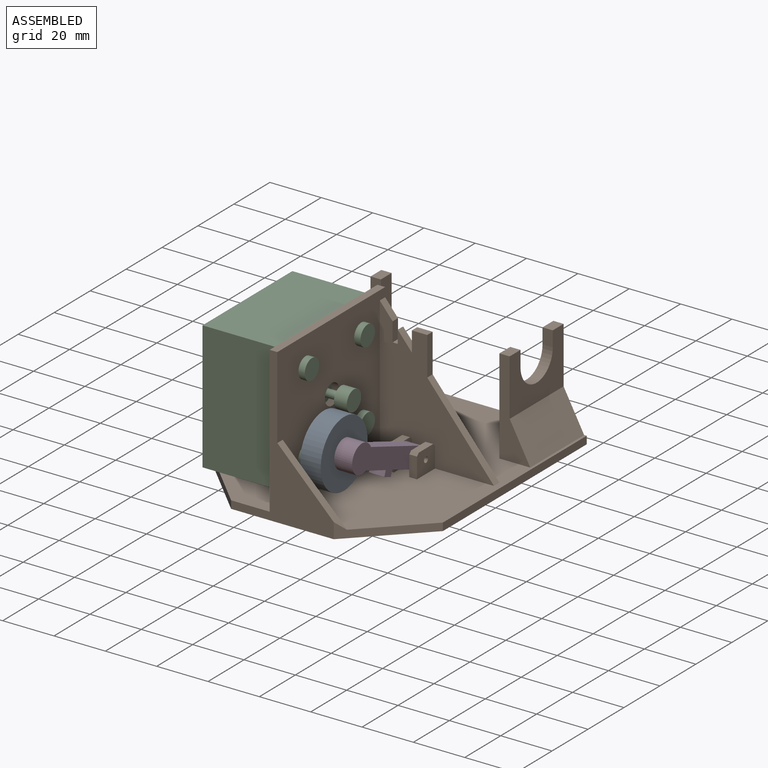
[diagram: assembled view]
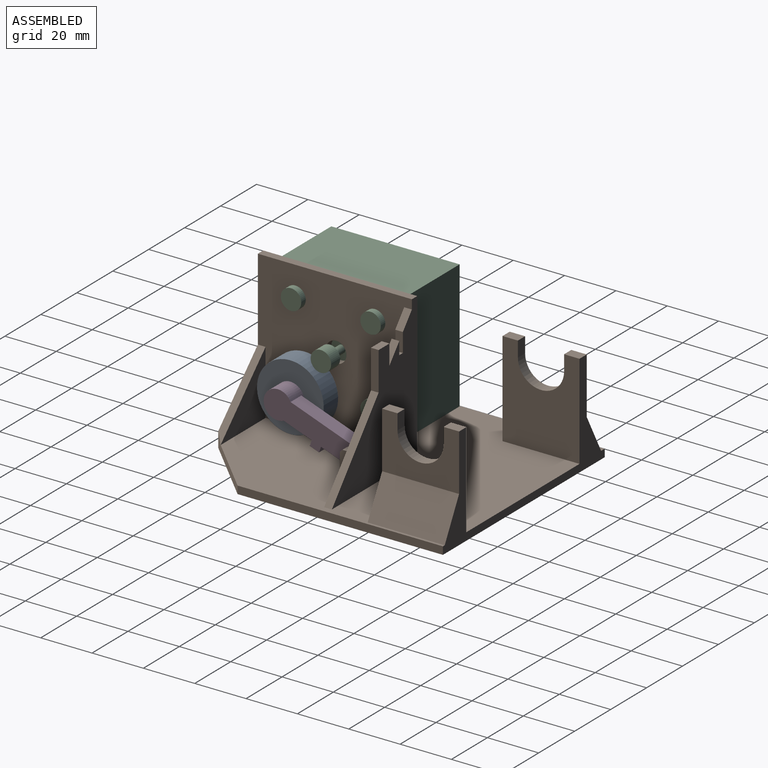
[diagram: assembled view, second angle]
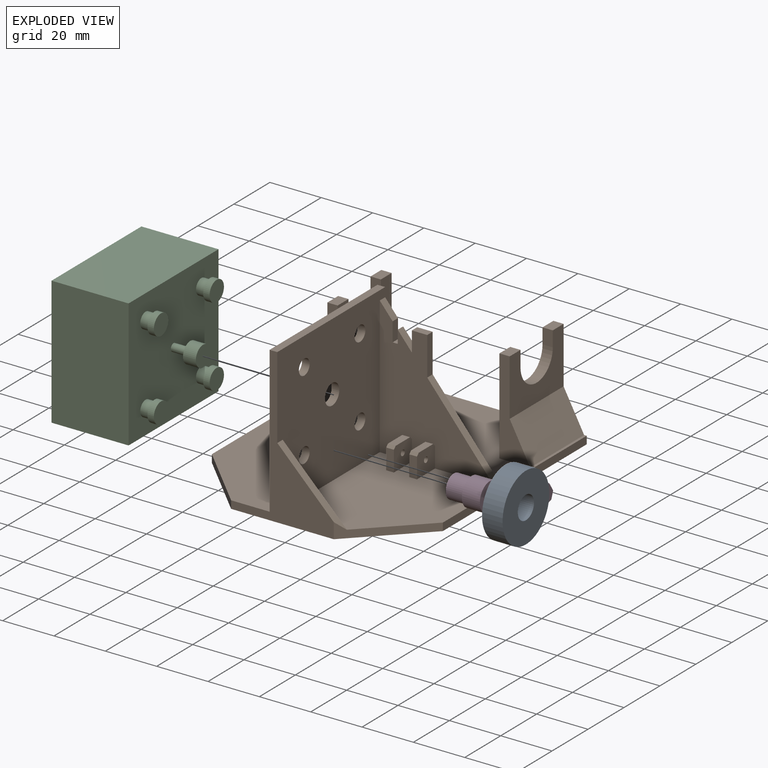
[diagram: exploded view]
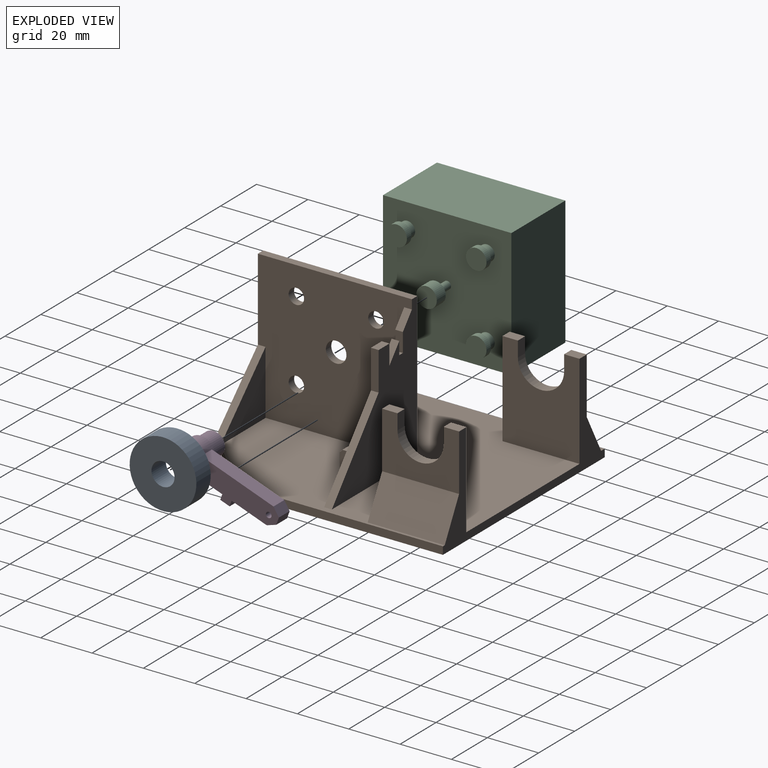
[diagram: exploded view, second angle]
ASSEMBLY  parts=4 mates=3
PART A: 4 faces, bbox 26x8x26 mm
  f0: cylinder r=4.5mm len=9mm, axis (0,1,0), area 226.2mm2, adj f2,f3
  f1: cylinder r=13mm len=26mm, axis (0,1,0), area 653.5mm2, adj f2,f3
  f2: plane 26x26mm, normal (0,-1,0), area 467.3mm2, adj f0,f1
  f3: plane 26x26mm, normal (0,1,0), area 467.3mm2, adj f0,f1
PART B: 61 faces, bbox 90x105x60 mm
  f0: plane 30x22mm, normal (-1,0,0), area 424.8mm2, adj f3,f7,f14,f16,f49,f50,f51,f60
  f1: plane 30x22mm, normal (1,0,0), area 424.8mm2, adj f2,f7,f12,f13,f52,f53,f54,f59
  f2: plane 6x4mm, normal (0,0,1), area 24mm2, adj f1,f11,f12,f54
  f3: plane 6x4mm, normal (0,0,1), area 24mm2, adj f0,f14,f15,f50
  f4: plane 60x57mm, normal (1,0,0), area 3021.4mm2, adj f5,f9,f31,f32,f33,f34,f35,f36
  f5: plane 60x40mm, normal (0,-1,0), area 599mm2, adj f4,f9,f10,f32,f38,f55,f57,f58
  f6: plane 80x3mm, normal (1,0,0), area 240mm2, adj f7,f9,f10,f58
  f7: plane 90x40mm, normal (0,1,0), area 686mm2, adj f0,f1,f6,f8,f9,f10,f11,f13
  f8: plane 80x3mm, normal (-1,0,0), area 240mm2, adj f7,f9,f10,f57
  f9: plane 105x90mm, normal (0,0,1), area 7661mm2, adj f4,f5,f6,f7,f8,f11,f12,f14
  f10: plane 105x90mm, normal (0,0,-1), area 8825mm2, adj f5,f6,f7,f8,f57,f58
  f11: plane 37x30mm, normal (-1,0,0), area 874.8mm2, adj f2,f7,f9,f12,f13,f52,f53,f54
  f12: plane 37x12mm, normal (0,-1,0), area 208mm2, adj f1,f2,f9,f11,f59
  f13: plane 6x4mm, normal (0,0,1), area 24mm2, adj f1,f7,f11,f53
  f14: plane 37x12mm, normal (0,-1,0), area 208mm2, adj f0,f3,f9,f15,f60
  f15: plane 37x30mm, normal (1,0,0), area 874.8mm2, adj f3,f7,f9,f14,f16,f49,f50,f51
  f16: plane 6x4mm, normal (0,0,1), area 24mm2, adj f0,f7,f15,f49
  f17: plane 8x3mm, normal (0,0,1), area 24mm2, adj f18,f20,f26,f27
  f18: plane 10x9mm, normal (1,0,0), area 85.2mm2, adj f9,f17,f19,f26,f27,f30,f39
  f19: plane 8x3mm, normal (0,-1,0), area 24mm2, adj f9,f18,f20,f26
  f20: plane 10x9mm, normal (-1,0,0), area 85.2mm2, adj f9,f17,f19,f26,f27,f30,f39
  f21: plane 8x3mm, normal (0,0,1), area 24mm2, adj f22,f24,f25,f28
  f22: plane 10x9mm, normal (1,0,0), area 85.2mm2, adj f9,f21,f23,f25,f28,f29,f39
  f23: plane 8x3mm, normal (0,-1,0), area 24mm2, adj f9,f22,f24,f25
  f24: plane 10x9mm, normal (-1,0,0), area 85.2mm2, adj f9,f21,f23,f25,f28,f29,f39
  f25: plane 3x1mm, normal (0,-0.71,0.71), area 4.2mm2, adj f21,f22,f23,f24
  f26: plane 3x1mm, normal (0,-0.71,0.71), area 4.2mm2, adj f17,f18,f19,f20
  f27: plane 3x1mm, normal (0,0.71,0.71), area 4.2mm2, adj f17,f18,f20,f39
  f28: plane 3x1mm, normal (0,0.71,0.71), area 4.2mm2, adj f21,f22,f24,f39
  f29: cylinder r=1.1mm len=3mm, axis (1,0,0), area 20.7mm2, adj f22,f24
  f30: cylinder r=1.1mm len=3mm, axis (1,0,0), area 20.7mm2, adj f18,f20
  f31: plane 57x47.5mm, normal (0,1,0), area 1415.1mm2, adj f4,f9,f32,f38,f40,f41,f42,f43
  f32: plane 60x3mm, normal (0,0,1), area 180mm2, adj f4,f5,f31,f38
  f33: cylinder r=3mm len=6mm, axis (-1,0,0), area 56.5mm2, adj f4,f38
  f34: cylinder r=3mm len=6mm, axis (-1,0,0), area 56.5mm2, adj f4,f38
  f35: cylinder r=3mm len=6mm, axis (-1,0,0), area 56.5mm2, adj f4,f38
  f36: cylinder r=3mm len=6mm, axis (-1,0,0), area 56.5mm2, adj f4,f38
  f37: cylinder r=4mm len=8mm, axis (-1,0,0), area 75.4mm2, adj f4,f38
  f38: plane 60x57mm, normal (-1,0,0), area 3256.6mm2, adj f5,f9,f31,f32,f33,f34,f35,f36
  f39: plane 53.4x44.5mm, normal (0,-1,0), area 1196.1mm2, adj f4,f9,f18,f20,f22,f24,f27,f28
  f40: plane 31.2x26mm, normal (0.77,0,0.64), area 121.8mm2, adj f9,f31,f39,f41
  f41: plane 15x3mm, normal (1,0,0), area 45mm2, adj f31,f39,f40,f42
  f42: plane 6x3mm, normal (0,0,1), area 18mm2, adj f31,f39,f41,f43
  f43: plane 7.8x3mm, normal (-1,0,0), area 23.4mm2, adj f31,f39,f42,f44
  f44: plane 6.6x5.5mm, normal (0.77,0,0.64), area 25.8mm2, adj f31,f39,f43,f45
  f45: plane 5x3mm, normal (-1,0,0), area 15mm2, adj f31,f39,f44,f46
  f46: plane 3x2mm, normal (0,0,1), area 6mm2, adj f31,f39,f45,f47
  f47: plane 7.4x3mm, normal (1,0,0), area 22.2mm2, adj f31,f39,f46,f48
  f48: plane 6x5mm, normal (0.77,0,0.64), area 23.4mm2, adj f4,f31,f39,f47
  f49: plane 6x4mm, normal (0,-1,0), area 24mm2, adj f0,f15,f16,f51
  f50: plane 6x4mm, normal (0,1,0), area 24mm2, adj f0,f3,f15,f51
  f51: cylinder r=9mm len=18mm, axis (1,0,0), area 113.1mm2, adj f0,f15,f49,f50
  f52: cylinder r=9mm len=18mm, axis (1,0,0), area 113.1mm2, adj f1,f11,f53,f54
  f53: plane 6x4mm, normal (0,-1,0), area 24mm2, adj f1,f11,f13,f52
  f54: plane 6x4mm, normal (0,1,0), area 24mm2, adj f1,f2,f11,f52
  f55: plane 25x25mm, normal (0.71,0,0.71), area 99.7mm2, adj f4,f5,f56,f58
  f56: plane 25x25mm, normal (0,1,0), area 312.5mm2, adj f4,f9,f55
  f57: plane 25x25mm, normal (-0.71,-0.71,0), area 106.1mm2, adj f5,f8,f9,f10
  f58: plane 25x25mm, normal (0.71,-0.71,0), area 112.4mm2, adj f5,f6,f9,f10,f55
  f59: plane 30x15mm, normal (0.88,0,0.47), area 510mm2, adj f1,f7,f9,f12
  f60: plane 30x15mm, normal (-0.88,0,0.47), area 510mm2, adj f0,f7,f9,f14
PART C: 26 faces, bbox 50x41.5x50 mm
  f0: plane 50x30mm, normal (0,0,1), area 1500mm2, adj f1,f3,f4,f5
  f1: plane 50x30mm, normal (-1,0,0), area 1500mm2, adj f0,f2,f4,f5
  f2: plane 50x30mm, normal (0,0,-1), area 1500mm2, adj f1,f3,f4,f5
  f3: plane 50x30mm, normal (1,0,0), area 1500mm2, adj f0,f2,f4,f5
  f4: plane 50x50mm, normal (0,1,0), area 2500mm2, adj f0,f1,f2,f3
  f5: plane 50x50mm, normal (0,-1,0), area 2379.8mm2, adj f0,f1,f2,f3,f6,f10,f14,f18
  f6: cylinder r=3mm len=6mm, axis (0,1,0), area 66mm2, adj f5,f7
  f7: plane 8x8mm, normal (0,1,0), area 22mm2, adj f6,f9
  f8: plane 8x8mm, normal (0,-1,0), area 50.3mm2, adj f9
  f9: cylinder r=4mm len=8mm, axis (0,1,0), area 62.8mm2, adj f7,f8
  f10: cylinder r=3mm len=6mm, axis (0,1,0), area 66mm2, adj f5,f11
  f11: plane 8x8mm, normal (0,1,0), area 22mm2, adj f10,f13
  f12: plane 8x8mm, normal (0,-1,0), area 50.3mm2, adj f13
  f13: cylinder r=4mm len=8mm, axis (0,1,0), area 62.8mm2, adj f11,f12
  f14: cylinder r=3mm len=6mm, axis (0,1,0), area 66mm2, adj f5,f15
  f15: plane 8x8mm, normal (0,1,0), area 22mm2, adj f14,f17
  f16: plane 8x8mm, normal (0,-1,0), area 50.3mm2, adj f17
  f17: cylinder r=4mm len=8mm, axis (0,1,0), area 62.8mm2, adj f15,f16
  f18: cylinder r=3mm len=6mm, axis (0,1,0), area 66mm2, adj f5,f19
  f19: plane 8x8mm, normal (0,1,0), area 22mm2, adj f18,f21
  f20: plane 8x8mm, normal (0,-1,0), area 50.3mm2, adj f21
  f21: cylinder r=4mm len=8mm, axis (0,1,0), area 62.8mm2, adj f19,f20
  f22: cylinder r=1.5mm len=6.5mm, axis (0,1,0), area 61.3mm2, adj f5,f23
  f23: plane 8x8mm, normal (0,1,0), area 43.2mm2, adj f22,f25
  f24: plane 8x8mm, normal (0,-1,0), area 50.3mm2, adj f25
  f25: cylinder r=4mm len=8mm, axis (0,1,0), area 125.7mm2, adj f23,f24
PART D: 16 faces, bbox 32.7x14x32.7 mm
  f0: cylinder r=5.5mm len=11mm, axis (0,1,0), area 190.1mm2, adj f1,f9,f11,f12,f13
  f1: plane 8.2x8.2mm, normal (-0.71,0,-0.71), area 69.5mm2, adj f0,f2,f11,f12
  f2: plane 6x1.63mm, normal (-0.71,0,0.71), area 13.9mm2, adj f1,f3,f11,f12
  f3: plane 6x2.74mm, normal (-0.71,0,-0.71), area 23.2mm2, adj f2,f4,f11,f12
  f4: plane 6x1.63mm, normal (0.71,0,-0.71), area 13.9mm2, adj f3,f5,f11,f12
  f5: plane 10.28x10.28mm, normal (-0.71,0,-0.71), area 87.2mm2, adj f4,f6,f11,f12
  f6: plane 6x3.88mm, normal (-0.13,0,-0.99), area 23.5mm2, adj f5,f7,f11,f12
  f7: plane 6x2.12mm, normal (0.71,0,-0.71), area 18mm2, adj f6,f8,f11,f12
  f8: plane 6x3.9mm, normal (0.99,0,0.13), area 23.6mm2, adj f7,f9,f11,f12
  f9: plane 21.21x21.21mm, normal (0.71,0,0.71), area 180mm2, adj f0,f8,f11,f12
  f10: cylinder r=1.1mm len=6mm, axis (0,1,0), area 41.5mm2, adj f11,f12
  f11: plane 32.73x32.72mm, normal (0,-1,0), area 341.7mm2, adj f0,f1,f2,f3,f4,f5,f6,f7
  f12: plane 27.23x27.22mm, normal (0,1,0), area 246.6mm2, adj f0,f1,f2,f3,f4,f5,f6,f7
  f13: plane 11x11mm, normal (0,1,0), area 31.4mm2, adj f0,f14
  f14: cylinder r=4.5mm len=9mm, axis (0,-1,0), area 197.9mm2, adj f13,f15
  f15: plane 9x9mm, normal (0,1,0), area 63.6mm2, adj f14
PLACE A rot(axis=(0.64,0.64,-0.41),135.3deg) t=(23.56,-32.27,34.82)mm
PLACE B t=(9.06,7.02,15.42)mm
PLACE C rot(axis=(0,0,1),90deg) t=(9.06,-22.48,48.92)mm
PLACE D rot(axis=(0.21,-0.21,0.95),92.7deg) t=(24.56,-32.27,34.82)mm
MATE fastened A.f0 <-> D.f14  axis (1,0,0) through (15.56,-32.27,34.82)mm
MATE revolute D.f10 <-> B.f29  axis (1,0,0) through (30.56,-0.98,23.42)mm
MATE fastened C.f18 <-> B.f35  axis (1,0,0) through (9.06,-37.98,64.42)mm
